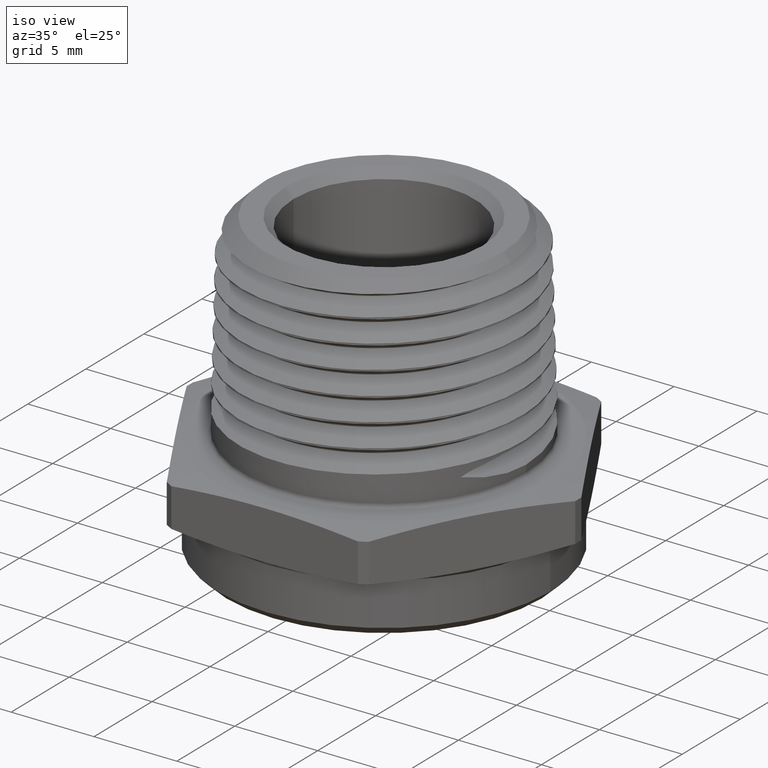
[diagram: clean part render]
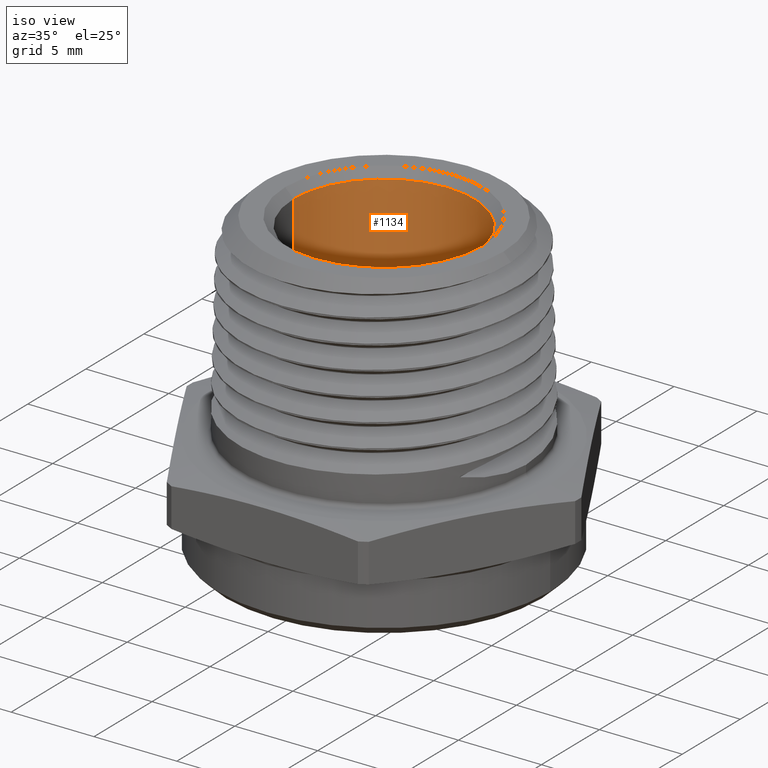
[diagram: same view with one face highlighted and labeled with its STEP entity id]
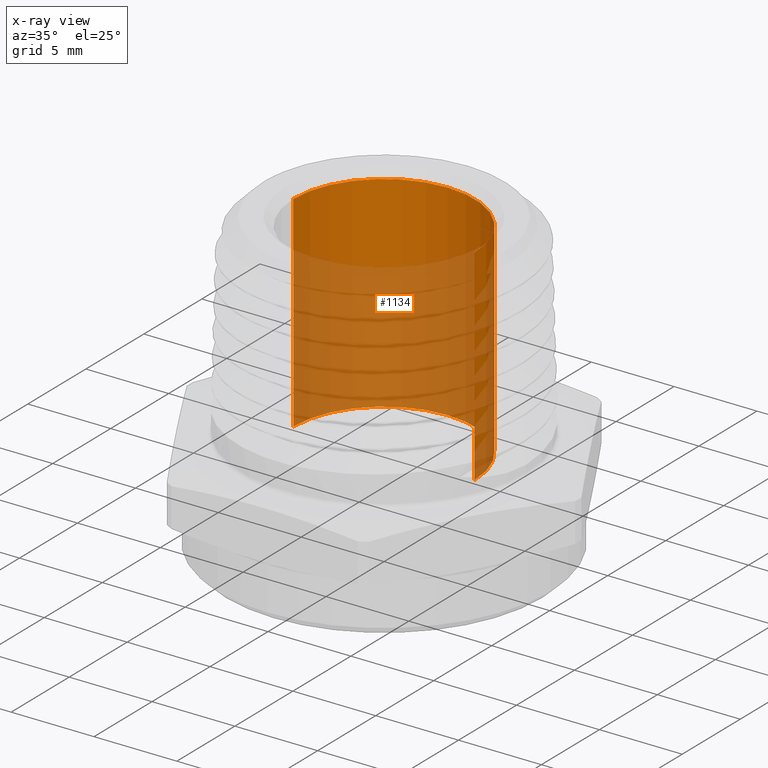
[diagram: x-ray of the same camera — body ghosted, the highlighted face saturated]
A machine part, iso view. The second image highlights one B-rep face of the part: STEP entity #1134.
The next image is the same camera in x-ray: the body ghosted, the highlighted face saturated — about 65% of this face is hidden behind the body in this view.
In plain terms, the highlighted cylindrical surface (partial cylindrical patch) has radius 5.461 mm, axis along (0, 0, -1).
Its self-contained STEP definition (entity closure, byte-faithful):
#106 = FACE_OUTER_BOUND ( 'NONE', #1698, .T. ) ;
#115 = CYLINDRICAL_SURFACE ( 'NONE', #2825, 0.2149999999999999700 ) ;
#140 = CIRCLE ( 'NONE', #2840, 0.2149999999999999700 ) ;
#157 = LINE ( 'NONE', #2173, #160 ) ;
#160 = VECTOR ( 'NONE', #2179, 39.37007874015748100 ) ;
#161 = LINE ( 'NONE', #2180, #163 ) ;
#163 = VECTOR ( 'NONE', #2178, 39.37007874015748100 ) ;
#458 = AXIS2_PLACEMENT_3D ( 'NONE', #5098, #5099, #5100 ) ;
#704 = VERTEX_POINT ( 'NONE', #3284 ) ;
#707 = VERTEX_POINT ( 'NONE', #3267 ) ;
#716 = VERTEX_POINT ( 'NONE', #3212 ) ;
#1134 = ADVANCED_FACE ( 'NONE', ( #106 ), #115, .F. ) ;
#1621 = CIRCLE ( 'NONE', #458, 0.2149999999999999100 ) ;
#1698 = EDGE_LOOP ( 'NONE', ( #3060, #3072, #3070, #3058 ) ) ;
#2148 = CARTESIAN_POINT ( 'NONE',  ( -1.224646799147303500E-018, 0.0000000000000000000, 0.08100000000000001600 ) ) ;
#2149 = DIRECTION ( 'NONE',  ( 2.296162711943753400E-033, -0.0000000000000000000, -1.000000000000000000 ) ) ;
#2150 = DIRECTION ( 'NONE',  ( 1.000000000000000000, 0.0000000000000000000, 0.0000000000000000000 ) ) ;
#2173 = CARTESIAN_POINT ( 'NONE',  ( 0.2149999999999999700, 2.632990618166808800E-017, -0.1300000000000000000 ) ) ;
#2178 = DIRECTION ( 'NONE',  ( 2.296162711943753400E-033, -0.0000000000000000000, -1.000000000000000000 ) ) ;
#2179 = DIRECTION ( 'NONE',  ( 2.296162711943753400E-033, -0.0000000000000000000, -1.000000000000000000 ) ) ;
#2180 = CARTESIAN_POINT ( 'NONE',  ( -0.2149999999999999700, 0.0000000000000000000, -0.1300000000000000000 ) ) ;
#2308 = EDGE_CURVE ( 'NONE', #707, #716, #140, .T. ) ;
#2319 = EDGE_CURVE ( 'NONE', #704, #716, #157, .T. ) ;
#2321 = EDGE_CURVE ( 'NONE', #3409, #707, #161, .T. ) ;
#2825 = AXIS2_PLACEMENT_3D ( 'NONE', #3193, #3189, #3191 ) ;
#2840 = AXIS2_PLACEMENT_3D ( 'NONE', #2148, #2149, #2150 ) ;
#3058 = ORIENTED_EDGE ( 'NONE', *, *, #2308, .T. ) ;
#3060 = ORIENTED_EDGE ( 'NONE', *, *, #2319, .F. ) ;
#3070 = ORIENTED_EDGE ( 'NONE', *, *, #2321, .T. ) ;
#3072 = ORIENTED_EDGE ( 'NONE', *, *, #5553, .F. ) ;
#3189 = DIRECTION ( 'NONE',  ( 2.296162711943753400E-033, -0.0000000000000000000, -1.000000000000000000 ) ) ;
#3191 = DIRECTION ( 'NONE',  ( -1.000000000000000000, 0.0000000000000000000, 0.0000000000000000000 ) ) ;
#3193 = CARTESIAN_POINT ( 'NONE',  ( -1.224646799147303100E-018, 0.0000000000000000000, -0.1300000000000000000 ) ) ;
#3212 = CARTESIAN_POINT ( 'NONE',  ( 0.2149999999999999700, 2.632990618166808800E-017, 0.08100000000000001600 ) ) ;
#3267 = CARTESIAN_POINT ( 'NONE',  ( -0.2149999999999999700, 0.0000000000000000000, 0.08100000000000001600 ) ) ;
#3284 = CARTESIAN_POINT ( 'NONE',  ( 0.2149999999999999100, 2.632990618166808500E-017, 0.5700000000000000600 ) ) ;
#3409 = VERTEX_POINT ( 'NONE', #3533 ) ;
#3533 = CARTESIAN_POINT ( 'NONE',  ( -0.2149999999999999100, 0.0000000000000000000, 0.5700000000000000600 ) ) ;
#5098 = CARTESIAN_POINT ( 'NONE',  ( -1.224646799147304700E-018, 0.0000000000000000000, 0.5700000000000000600 ) ) ;
#5099 = DIRECTION ( 'NONE',  ( 2.296162711943753400E-033, -0.0000000000000000000, -1.000000000000000000 ) ) ;
#5100 = DIRECTION ( 'NONE',  ( -1.000000000000000000, 0.0000000000000000000, 0.0000000000000000000 ) ) ;
#5553 = EDGE_CURVE ( 'NONE', #3409, #704, #1621, .T. ) ;